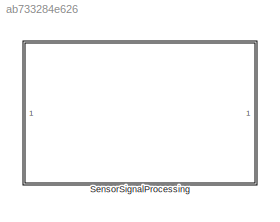
MODEL slx_ab733284e626
KIND library
CONFIG AbsTol = auto
CONFIG EnableMultiTasking = off
CONFIG FixedStep = auto
CONFIG MaxStep = auto
CONFIG MinStep = auto
CONFIG RelTol = 1e-3
CONFIG SampleTimeConstraint = Unconstrained
CONFIG Solver = VariableStepAuto
CONFIG SolverName = VariableStepAuto
CONFIG StartTime = 0.0
CONFIG StopTime = 10.0
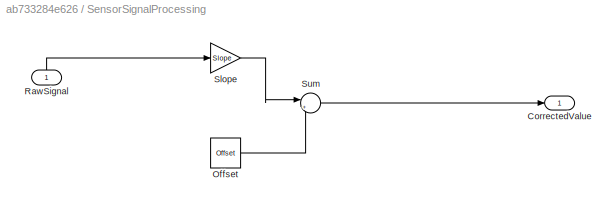
BLOCK [SubSystem] SensorSignalProcessing
  Ports = [1, 1]
  RequestExecContextInheritance = off
  Variant = off
BLOCK [Outport] SensorSignalProcessing/CorrectedValue
  IconDisplay = Port number
BLOCK [Constant] SensorSignalProcessing/Offset
  Value = Offset
BLOCK [Inport] SensorSignalProcessing/RawSignal
  IconDisplay = Port number
BLOCK [Gain] SensorSignalProcessing/Slope
  Gain = Slope
  OutDataTypeStr = Inherit: Inherit via internal rule
  ParamDataTypeStr = Inherit: Inherit via internal rule
  SaturateOnIntegerOverflow = off
BLOCK [Sum] SensorSignalProcessing/Sum
  IconShape = round
  InputSameDT = off
  Inputs = |++
  OutDataTypeStr = Inherit: Inherit via internal rule
  Ports = [2, 1]
  SaturateOnIntegerOverflow = off
LINE SensorSignalProcessing/Offset:1 -> SensorSignalProcessing/Sum:2
LINE SensorSignalProcessing/RawSignal:1 -> SensorSignalProcessing/Slope:1
LINE SensorSignalProcessing/Slope:1 -> SensorSignalProcessing/Sum:1
LINE SensorSignalProcessing/Sum:1 -> SensorSignalProcessing/CorrectedValue:1
